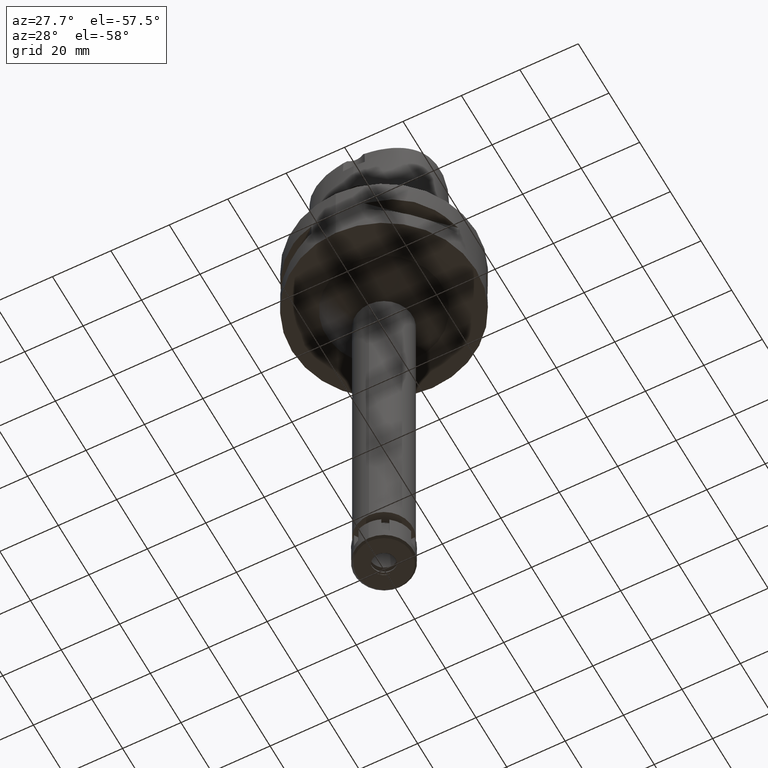
[diagram: clean part render]
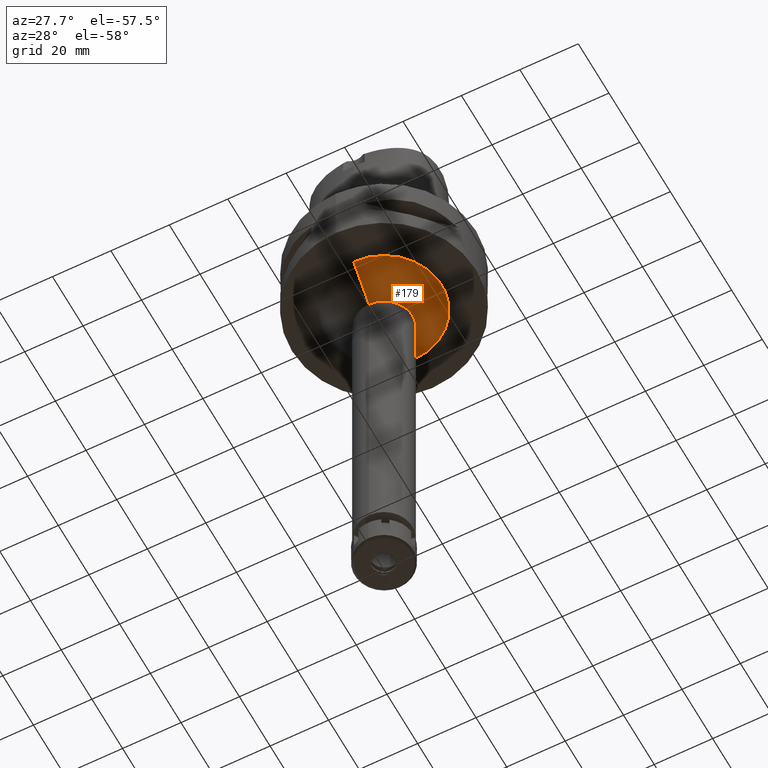
[diagram: same view with one face highlighted and labeled with its STEP entity id]
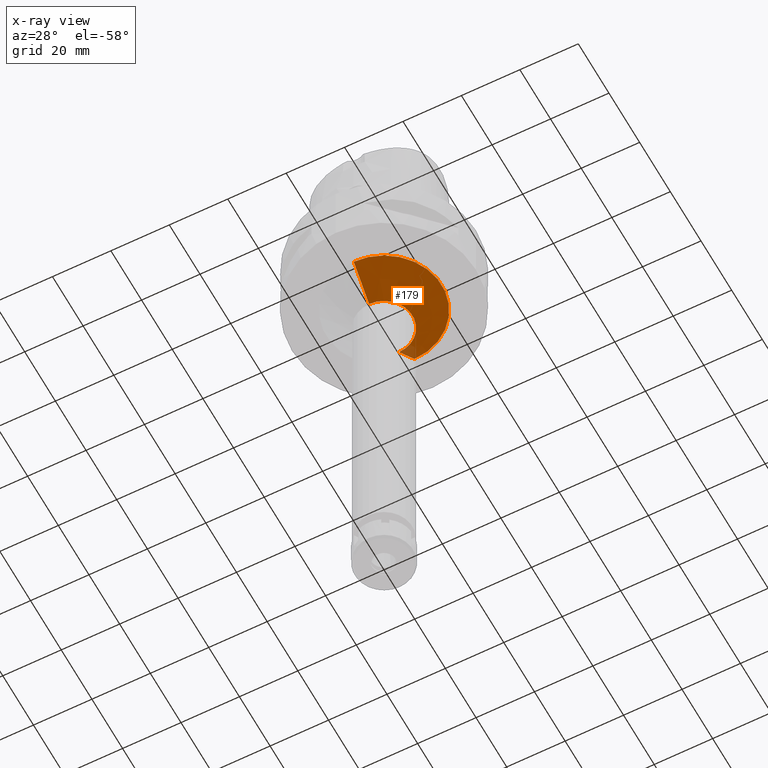
[diagram: x-ray of the same camera — body ghosted, the highlighted face saturated]
A machine part, auxiliary view. The second image highlights one B-rep face of the part: STEP entity #179.
The next image is the same camera in x-ray: the body ghosted, the highlighted face saturated — about 3% of this face is hidden behind the body in this view.
In plain terms, the highlighted conical surface has half-angle 45 deg.
Its self-contained STEP definition (entity closure, byte-faithful):
#179 = ADVANCED_FACE ( 'NONE', ( #3165 ), #955, .T. ) ;
#424 = CARTESIAN_POINT ( 'NONE',  ( 0.0000000000000000000, 0.0000000000000000000, -22.00000000000000000 ) ) ;
#589 = CARTESIAN_POINT ( 'NONE',  ( 0.0000000000000000000, -19.75000000000000000, -22.00000000000000000 ) ) ;
#800 = LINE ( 'NONE', #5522, #2665 ) ;
#827 = CARTESIAN_POINT ( 'NONE',  ( 0.0000000000000000000, 19.75000000000000000, -22.00000000000000000 ) ) ;
#955 = CONICAL_SURFACE ( 'NONE', #4452, 14.75000000000000000, 0.7853981633972997312 ) ;
#1030 = CARTESIAN_POINT ( 'NONE',  ( 0.0000000000000000000, 0.0000000000000000000, -27.00000000000000000 ) ) ;
#1216 = EDGE_CURVE ( 'NONE', #4983, #2090, #4539, .T. ) ;
#1288 = DIRECTION ( 'NONE',  ( 0.0000000000000000000, 0.0000000000000000000, -1.000000000000000000 ) ) ;
#1461 = CARTESIAN_POINT ( 'NONE',  ( 0.0000000000000000000, 0.0000000000000000000, -32.00000000000000000 ) ) ;
#1685 = DIRECTION ( 'NONE',  ( 0.0000000000000000000, 0.7071067811865474617, -0.7071067811865474617 ) ) ;
#1900 = EDGE_CURVE ( 'NONE', #2090, #3203, #800, .T. ) ;
#2030 = CARTESIAN_POINT ( 'NONE',  ( 0.0000000000000000000, 19.75000000000000000, -22.00000000000000000 ) ) ;
#2090 = VERTEX_POINT ( 'NONE', #589 ) ;
#2110 = DIRECTION ( 'NONE',  ( 0.0000000000000000000, -0.7071067811865474617, -0.7071067811865474617 ) ) ;
#2317 = VERTEX_POINT ( 'NONE', #4643 ) ;
#2665 = VECTOR ( 'NONE', #1685, 1000.000000000000114 ) ;
#2693 = ORIENTED_EDGE ( 'NONE', *, *, #1216, .T. ) ;
#2745 = DIRECTION ( 'NONE',  ( 0.0000000000000000000, 0.0000000000000000000, -1.000000000000000000 ) ) ;
#2799 = DIRECTION ( 'NONE',  ( 0.0000000000000000000, 1.000000000000000000, 0.0000000000000000000 ) ) ;
#3124 = EDGE_LOOP ( 'NONE', ( #2693, #4830, #5012, #4608 ) ) ;
#3165 = FACE_OUTER_BOUND ( 'NONE', #3124, .T. ) ;
#3203 = VERTEX_POINT ( 'NONE', #3899 ) ;
#3252 = CIRCLE ( 'NONE', #3975, 9.750000000000000000 ) ;
#3712 = EDGE_CURVE ( 'NONE', #2317, #3203, #3252, .T. ) ;
#3899 = CARTESIAN_POINT ( 'NONE',  ( 0.0000000000000000000, -9.750000000000000000, -32.00000000000000000 ) ) ;
#3975 = AXIS2_PLACEMENT_3D ( 'NONE', #1461, #2745, #4473 ) ;
#4452 = AXIS2_PLACEMENT_3D ( 'NONE', #1030, #5329, #2799 ) ;
#4473 = DIRECTION ( 'NONE',  ( 0.0000000000000000000, 1.000000000000000000, 0.0000000000000000000 ) ) ;
#4539 = CIRCLE ( 'NONE', #5168, 19.75000000000000000 ) ;
#4608 = ORIENTED_EDGE ( 'NONE', *, *, #5009, .F. ) ;
#4643 = CARTESIAN_POINT ( 'NONE',  ( 0.0000000000000000000, 9.750000000000000000, -32.00000000000000000 ) ) ;
#4830 = ORIENTED_EDGE ( 'NONE', *, *, #1900, .T. ) ;
#4983 = VERTEX_POINT ( 'NONE', #2030 ) ;
#5009 = EDGE_CURVE ( 'NONE', #4983, #2317, #5527, .T. ) ;
#5012 = ORIENTED_EDGE ( 'NONE', *, *, #3712, .F. ) ;
#5072 = DIRECTION ( 'NONE',  ( 0.0000000000000000000, 1.000000000000000000, 0.0000000000000000000 ) ) ;
#5147 = VECTOR ( 'NONE', #2110, 1000.000000000000114 ) ;
#5168 = AXIS2_PLACEMENT_3D ( 'NONE', #424, #1288, #5072 ) ;
#5329 = DIRECTION ( 'NONE',  ( 0.0000000000000000000, 0.0000000000000000000, 1.000000000000000000 ) ) ;
#5522 = CARTESIAN_POINT ( 'NONE',  ( 0.0000000000000000000, -19.75000000000000000, -22.00000000000000000 ) ) ;
#5527 = LINE ( 'NONE', #827, #5147 ) ;